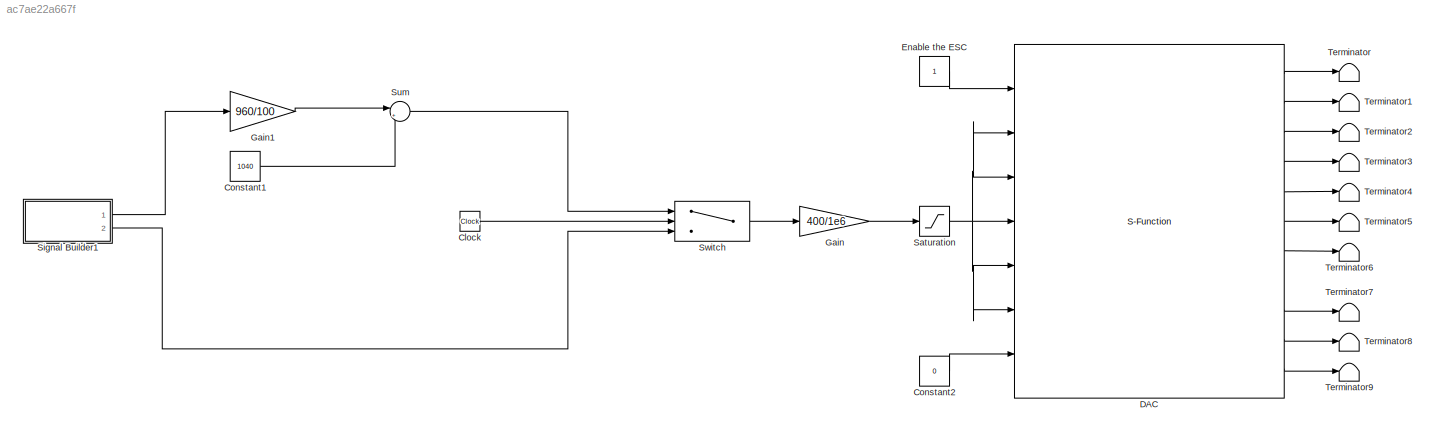
MODEL slx_ac7ae22a667f
KIND model
CONFIG AbsTol = auto
CONFIG EnableMultiTasking = off
CONFIG FixedStep = auto
CONFIG MaxStep = auto
CONFIG MinStep = auto
CONFIG RelTol = 1e-3
CONFIG SampleTimeConstraint = Unconstrained
CONFIG SolverName = VariableStepAuto
CONFIG StartTime = 0.0
CONFIG StopTime = 10.0
BLOCK [Clock] Clock
BLOCK [Constant] Constant1
  Value = 1040
BLOCK [Constant] Constant2
  Value = 0
BLOCK [S-Function] DAC
  EnableBusSupport = off
  FunctionName = dacSfunction
  Parameters = serialPort,sampleTime,gpioOutCh1FinalState,gpioOutCh2FinalState,gpioOutCh3FinalState,pwmFrequency,pwmCh1FinalDuty,pwmCh2FinalDuty,pwmCh3FinalDuty,pwmCh4FinalDuty,enc1Mode,enc1ResetCount,enc1Direction,enc1Quadrature,enc1Filter,enc2Mode,enc2ResetCount,enc2Direction,enc2Quadrature,enc2Filter,enc3Mode,enc3ResetCount,enc3Direction,enc3Quadrature,enc3Filter
  Ports = [7, 11]
  SFcnIsStateOwnerBlock = off
  SFunctionDeploymentMode = off
BLOCK [Constant] Enable the ESC
BLOCK [Gain] Gain
  Gain = 400/1e6
BLOCK [Gain] Gain1
  Gain = 960/100
BLOCK [Saturate] Saturation
  LowerLimit = 0
  UpperLimit = 0.8
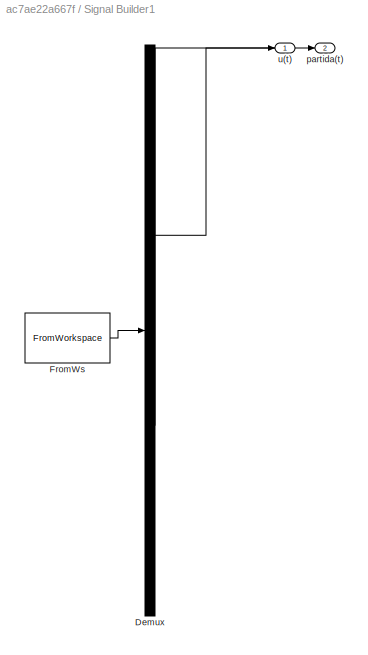
BLOCK [SubSystem] Signal Builder1
  ClipboardFcn = sigbuilder_block('clipboard');
  CloseFcn = sigbuilder_block('close');
  ContinueFcn = sigbuilder_block('continue');
  CopyFcn = sigbuilder_block('copy');
  DeleteFcn = sigbuilder_block('delete');
  LoadFcn = sigbuilder_block('load');
  MaskHideContents = on
  ModelCloseFcn = sigbuilder_block('modelClose');
  NameChangeFcn = sigbuilder_block('namechange');
  OpenFcn = sigbuilder_block('open',[5.4 36 1141.2 516.6 ]);
  PauseFcn = sigbuilder_block('pause');
  Ports = [0, 2]
  PreSaveFcn = sigbuilder_block('preSave');
  RequestExecContextInheritance = off
  StartFcn = sigbuilder_block('start');
  StopFcn = sigbuilder_block('stop');
  Tag = STV Subsys
BLOCK [Demux] Signal Builder1/Demux
  DisplayOption = none
  Outputs = 2
  Ports = [1, 2]
  Tag = STV Demux
BLOCK [FromWorkspace] Signal Builder1/FromWs
  Tag = STV FromWs
  VariableName = tuvar
BLOCK [Outport] Signal Builder1/partida(t)
  Port = 2
  Tag = STV Outport
BLOCK [Outport] Signal Builder1/u(t)
  Tag = STV Outport
BLOCK [Sum] Sum
  Inputs = |++
  Ports = [2, 1]
BLOCK [Switch] Switch
  InputSameDT = off
  SaturateOnIntegerOverflow = off
  Threshold = 10
BLOCK [Terminator] Terminator
BLOCK [Terminator] Terminator1
BLOCK [Terminator] Terminator2
BLOCK [Terminator] Terminator3
BLOCK [Terminator] Terminator4
BLOCK [Terminator] Terminator5
  NameLocation = left
BLOCK [Terminator] Terminator6
BLOCK [Terminator] Terminator7
BLOCK [Terminator] Terminator8
BLOCK [Terminator] Terminator9
LINE Clock:1 -> Switch:2
LINE Constant1:1 -> Sum:2
LINE Constant2:1 -> DAC:7
LINE DAC:1 -> Terminator:1
LINE DAC:10 -> Terminator8:1
LINE DAC:11 -> Terminator9:1
LINE DAC:2 -> Terminator1:1
LINE DAC:3 -> Terminator2:1
LINE DAC:4 -> Terminator3:1
LINE DAC:5 -> Terminator4:1
LINE DAC:6 -> Terminator5:1
LINE DAC:7 -> Terminator6:1
LINE DAC:9 -> Terminator7:1
LINE Enable the ESC:1 -> DAC:1
LINE Gain1:1 -> Sum:1
LINE Gain:1 -> Saturation:1
NET Saturation:1 -> DAC:2, DAC:3, DAC:4, DAC:5, DAC:6
LINE Signal Builder1:1 -> Gain1:1
LINE Signal Builder1:2 -> Switch:3
LINE Sum:1 -> Switch:1
LINE Switch:1 -> Gain:1
note: NET lines group one-source signal fan-out (src -> all destinations, sorted); 1:1 wires keep LINE
